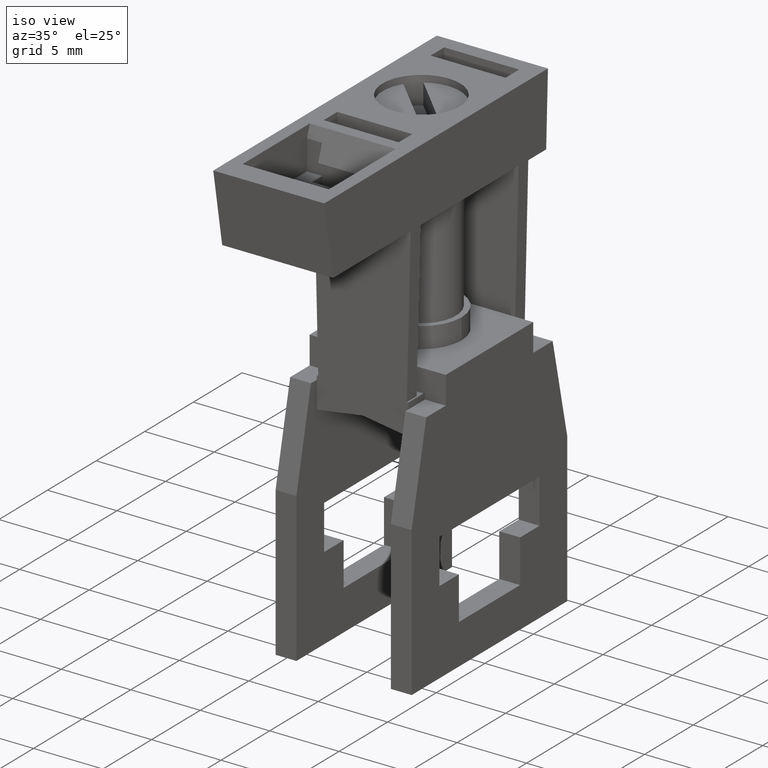
[diagram: clean part render]
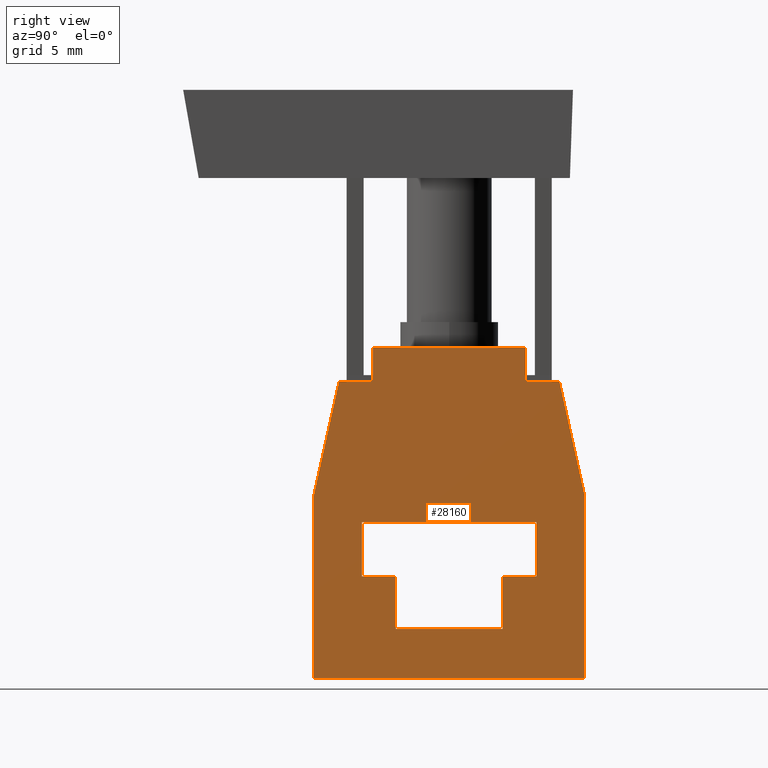
[diagram: tour spotlight — one face highlighted and labeled with its STEP entity id]
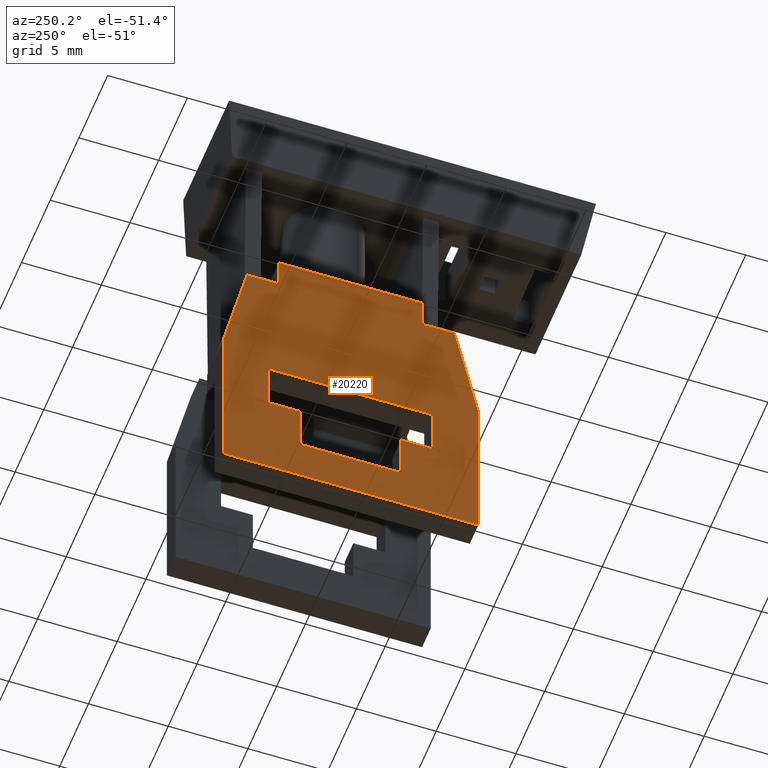
[diagram: tour spotlight — one face highlighted and labeled with its STEP entity id]
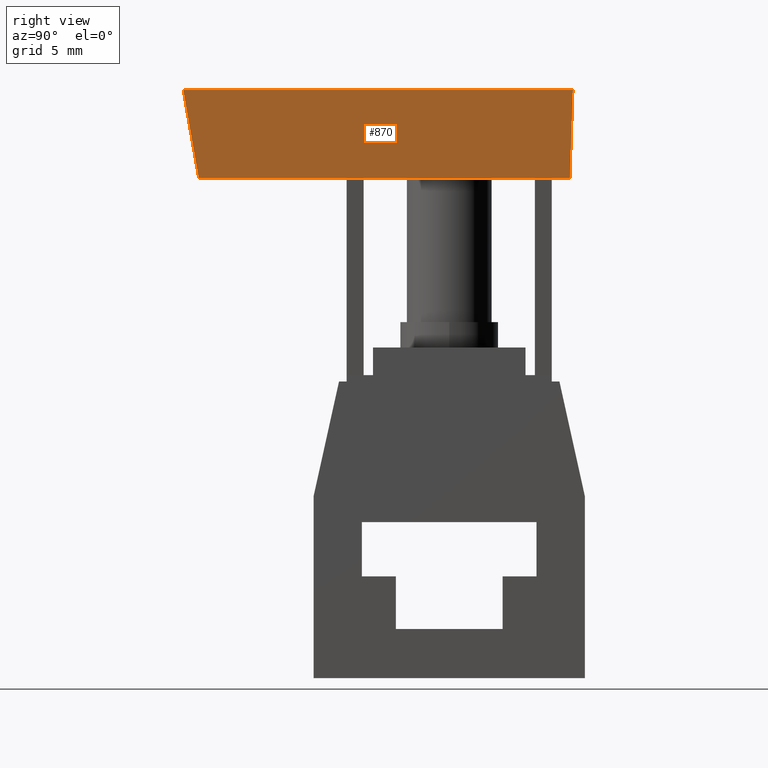
[diagram: tour spotlight — one face highlighted and labeled with its STEP entity id]
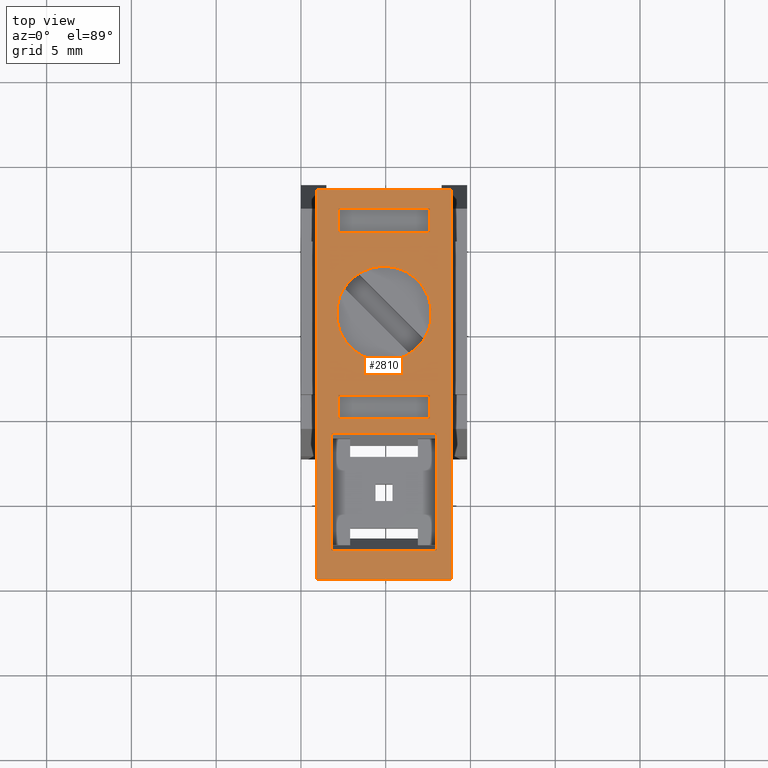
[diagram: tour spotlight — one face highlighted and labeled with its STEP entity id]
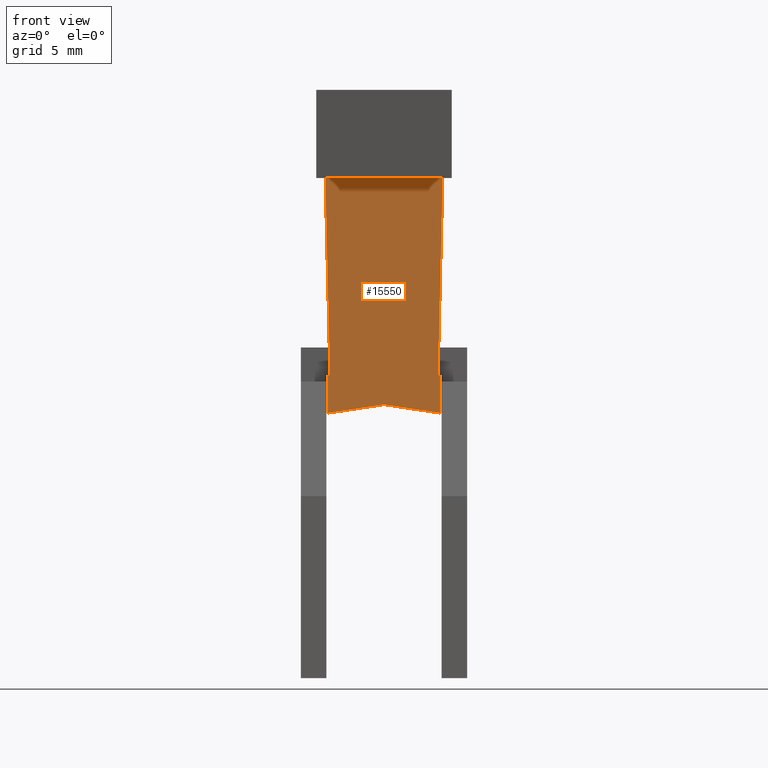
[diagram: tour spotlight — one face highlighted and labeled with its STEP entity id]
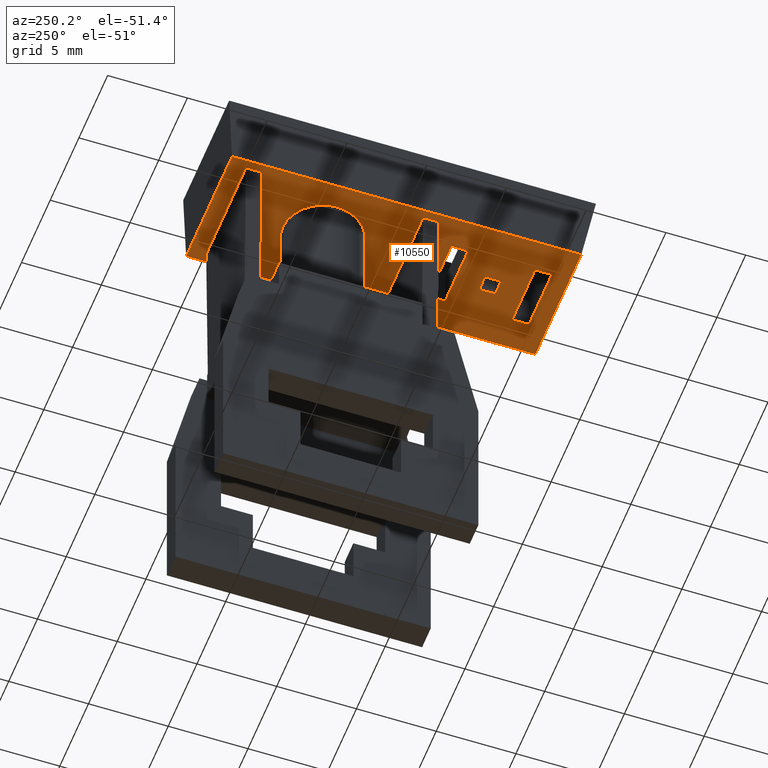
[diagram: tour spotlight — one face highlighted and labeled with its STEP entity id]
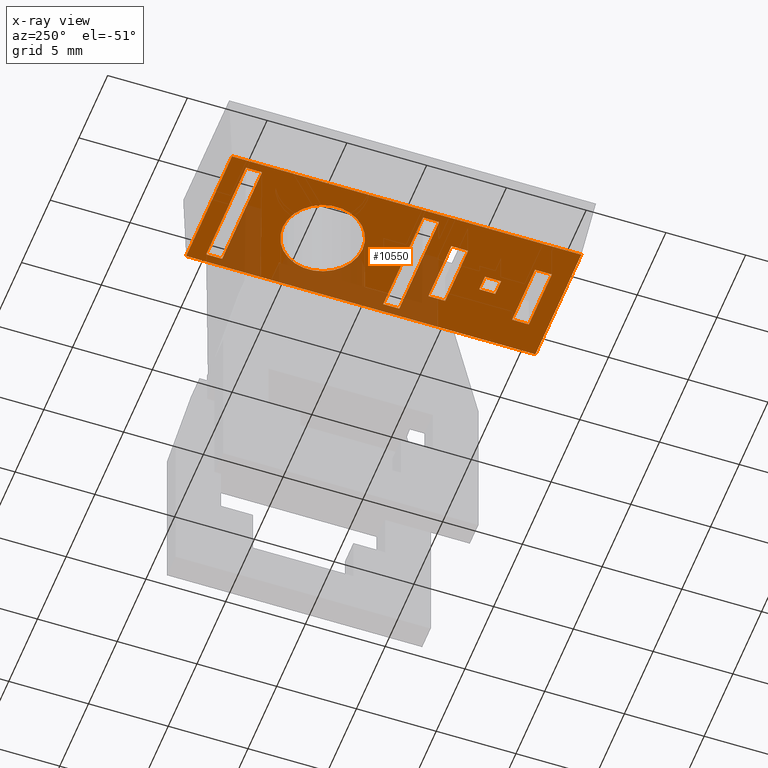
[diagram: x-ray of the same camera — body ghosted, this tour face saturated]
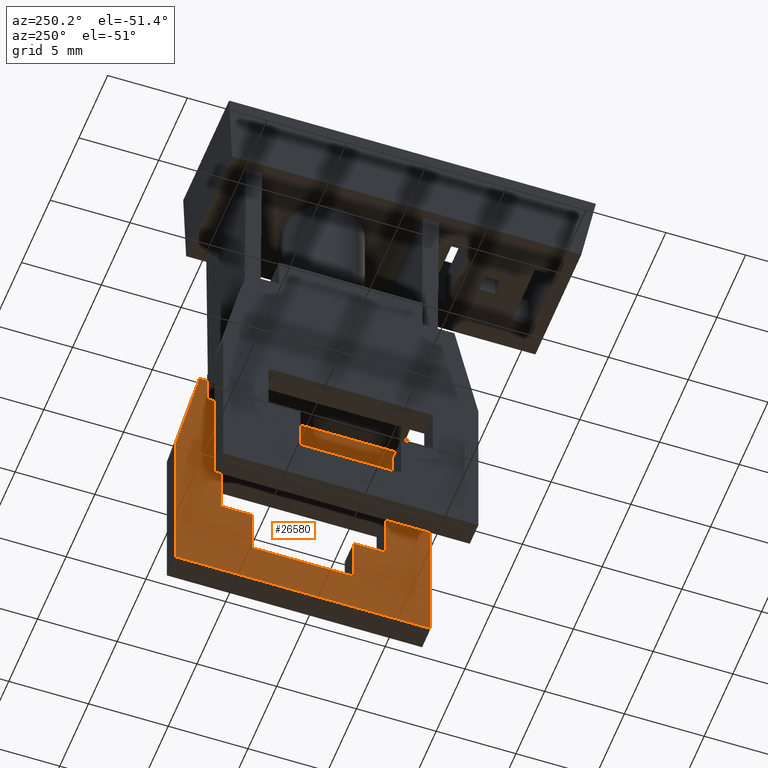
[diagram: tour spotlight — one face highlighted and labeled with its STEP entity id]
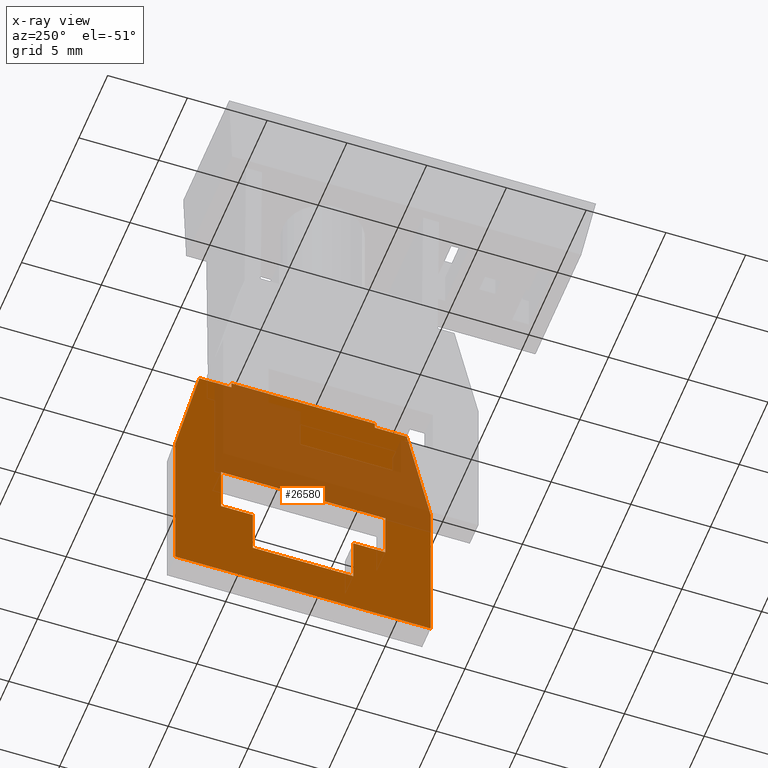
[diagram: x-ray of the same camera — body ghosted, this tour face saturated]
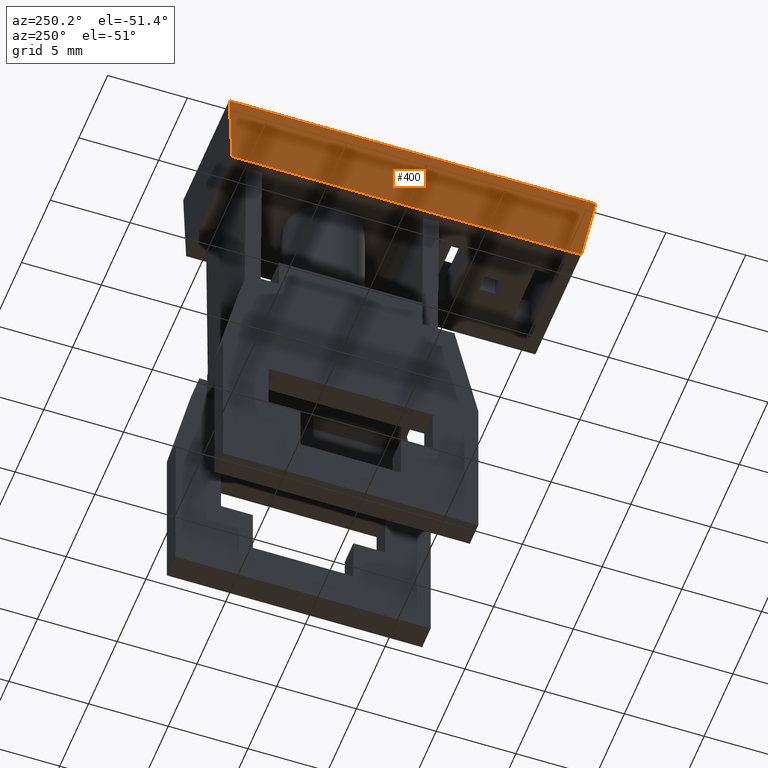
[diagram: tour spotlight — one face highlighted and labeled with its STEP entity id]
A machine part: a face-by-face anatomy tour. The part has 104 B-rep faces; the first image is the clean iso view, then the 8 largest visible faces are spotlighted one at a time (largest first), each with its STEP entity span.

Face 1 — right view, entity #28160. In plain terms, the highlighted planar face has unit normal (1, 0, -0).
Definition (entity closure, byte-faithful):
#11840=CARTESIAN_POINT('',(0.,19.5,0.));
#11850=DIRECTION('',(0.,0.,-1.));
#11860=VECTOR('',#11850,1.);
#11870=LINE('',#11840,#11860);
#11880=CARTESIAN_POINT('',(0.,19.5,12.5));
#11890=VERTEX_POINT('',#11880);
#11900=CARTESIAN_POINT('',(0.,19.5,3.5));
#11910=VERTEX_POINT('',#11900);
#11920=EDGE_CURVE('',#11890,#11910,#11870,.T.);
#12730=CARTESIAN_POINT('',(0.,17.5,3.5));
#12740=VERTEX_POINT('',#12730);
#12770=CARTESIAN_POINT('',(0.,0.,3.5));
#12780=DIRECTION('',(0.,-1.,-6.12323399573677E-17));
#12790=VECTOR('',#12780,1.);
#12800=LINE('',#12770,#12790);
#12810=EDGE_CURVE('',#11910,#12740,#12800,.T.);
#24620=CARTESIAN_POINT('',(0.,0.,12.5));
#24630=DIRECTION('',(0.,1.,6.12323399573677E-17));
#24640=VECTOR('',#24630,1.);
#24650=LINE('',#24620,#24640);
#24660=CARTESIAN_POINT('',(0.,17.5,12.5));
#24670=VERTEX_POINT('',#24660);
#24680=EDGE_CURVE('',#24670,#11890,#24650,.T.);
#25000=CARTESIAN_POINT('',(0.,17.5,14.5));
#25010=VERTEX_POINT('',#25000);
#25040=CARTESIAN_POINT('',(0.,0.,18.3796565962514));
#25050=DIRECTION('',(0.,0.976296007119933,-0.216439613938103));
#25060=VECTOR('',#25050,1.);
#25070=LINE('',#25040,#25060);
#25080=CARTESIAN_POINT('',(0.,10.7339372445069,16.));
#25090=VERTEX_POINT('',#25080);
#25100=EDGE_CURVE('',#25090,#25010,#25070,.T.);
#26750=CARTESIAN_POINT('',(0.,6.,4.85000000000001));
#26760=VERTEX_POINT('',#26750);
#26840=CARTESIAN_POINT('',(0.,6.,2.85000000000001));
#26850=VERTEX_POINT('',#26840);
#26880=CARTESIAN_POINT('',(0.,6.,0.));
#26890=DIRECTION('',(0.,6.12323399573677E-17,-1.));
#26900=VECTOR('',#26890,1.);
#26910=LINE('',#26880,#26900);
#26920=EDGE_CURVE('',#26760,#26850,#26910,.T.);
#27040=CARTESIAN_POINT('',(0.,2.89999999999998,0.));
#27050=DIRECTION('',(1.,0.,0.));
#27060=DIRECTION('',(0.,-1.,0.));
#27070=AXIS2_PLACEMENT_3D('',#27040,#27050,#27060);
#27080=PLANE('',#27070);
#27090=CARTESIAN_POINT('',(0.,0.,11.15));
#27100=DIRECTION('',(0.,-1.,-6.12323399573677E-17));
#27110=VECTOR('',#27100,1.);
#27120=LINE('',#27090,#27110);
#27130=CARTESIAN_POINT('',(0.,6.,11.15));
#27140=VERTEX_POINT('',#27130);
#27150=CARTESIAN_POINT('',(0.,2.89999999999998,11.15));
#27160=VERTEX_POINT('',#27150);
#27170=EDGE_CURVE('',#27140,#27160,#27120,.T.);
#27180=ORIENTED_EDGE('',*,*,#27170,.F.);
#27190=CARTESIAN_POINT('',(0.,2.89999999999998,0.));
#27200=DIRECTION('',(0.,6.12323399573677E-17,-1.));
#27210=VECTOR('',#27200,1.);
#27220=LINE('',#27190,#27210);
#27230=CARTESIAN_POINT('',(0.,2.89999999999998,4.85000000000001));
#27240=VERTEX_POINT('',#27230);
#27250=EDGE_CURVE('',#27160,#27240,#27220,.T.);
#27260=ORIENTED_EDGE('',*,*,#27250,.F.);
#27270=CARTESIAN_POINT('',(0.,0.,4.85000000000001));
#27280=DIRECTION('',(0.,1.,6.12323399573677E-17));
#27290=VECTOR('',#27280,1.);
#27300=LINE('',#27270,#27290);
#27310=EDGE_CURVE('',#27240,#26760,#27300,.T.);
#27320=ORIENTED_EDGE('',*,*,#27310,.F.);
#27330=ORIENTED_EDGE('',*,*,#26920,.F.);
#27340=CARTESIAN_POINT('',(0.,0.,2.85000000000001));
#27350=DIRECTION('',(0.,1.,6.12323399573677E-17));
#27360=VECTOR('',#27350,1.);
#27370=LINE('',#27340,#27360);
#27380=CARTESIAN_POINT('',(0.,9.2,2.85000000000001));
#27390=VERTEX_POINT('',#27380);
#27400=EDGE_CURVE('',#26850,#27390,#27370,.T.);
#27410=ORIENTED_EDGE('',*,*,#27400,.F.);
#27420=CARTESIAN_POINT('',(0.,9.2,0.));
#27430=DIRECTION('',(0.,0.,1.));
#27440=VECTOR('',#27430,1.);
#27450=LINE('',#27420,#27440);
#27460=CARTESIAN_POINT('',(0.,9.2,13.15));
#27470=VERTEX_POINT('',#27460);
#27480=EDGE_CURVE('',#27390,#27470,#27450,.T.);
#27490=ORIENTED_EDGE('',*,*,#27480,.F.);
#27500=CARTESIAN_POINT('',(0.,0.,13.15));
#27510=DIRECTION('',(0.,-1.,-6.12323399573677E-17));
#27520=VECTOR('',#27510,1.);
#27530=LINE('',#27500,#27520);
#27540=CARTESIAN_POINT('',(0.,6.,13.15));
#27550=VERTEX_POINT('',#27540);
#27560=EDGE_CURVE('',#27470,#27550,#27530,.T.);
#27570=ORIENTED_EDGE('',*,*,#27560,.F.);
#27580=CARTESIAN_POINT('',(0.,6.,0.));
#27590=DIRECTION('',(0.,6.12323399573677E-17,-1.));
#27600=VECTOR('',#27590,1.);
#27610=LINE('',#27580,#27600);
#27620=EDGE_CURVE('',#27550,#27140,#27610,.T.);
#27630=ORIENTED_EDGE('',*,*,#27620,.F.);
#27640=EDGE_LOOP('',(#27630,#27570,#27490,#27410,#27330,#27320,#27260,
#27180));
#27650=FACE_BOUND('',#27640,.T.);
#27660=CARTESIAN_POINT('',(0.,0.,16.));
#27670=DIRECTION('',(0.,1.,6.12323399573677E-17));
#27680=VECTOR('',#27670,1.);
#27690=LINE('',#27660,#27680);
#27700=CARTESIAN_POINT('',(0.,0.,16.));
#27710=VERTEX_POINT('',#27700);
#27720=EDGE_CURVE('',#27710,#25090,#27690,.T.);
#27730=ORIENTED_EDGE('',*,*,#27720,.F.);
#27740=ORIENTED_EDGE('',*,*,#25100,.F.);
#27750=CARTESIAN_POINT('',(0.,17.5,0.));
#27760=DIRECTION('',(0.,6.12323399573677E-17,-1.));
#27770=VECTOR('',#27760,1.);
#27780=LINE('',#27750,#27770);
#27790=EDGE_CURVE('',#25010,#24670,#27780,.T.);
#27800=ORIENTED_EDGE('',*,*,#27790,.F.);
#27810=ORIENTED_EDGE('',*,*,#24680,.F.);
#27820=ORIENTED_EDGE('',*,*,#11920,.F.);
#27830=ORIENTED_EDGE('',*,*,#12810,.F.);
#27840=CARTESIAN_POINT('',(0.,17.5,0.));
#27850=DIRECTION('',(0.,6.12323399573677E-17,-1.));
#27860=VECTOR('',#27850,1.);
#27870=LINE('',#27840,#27860);
#27880=CARTESIAN_POINT('',(0.,17.5,1.5));
#27890=VERTEX_POINT('',#27880);
#27900=EDGE_CURVE('',#12740,#27890,#27870,.T.);
#27910=ORIENTED_EDGE('',*,*,#27900,.F.);
#27920=CARTESIAN_POINT('',(0.,0.,-2.37965659625144));
#27930=DIRECTION('',(0.,-0.976296007119933,-0.216439613938103));
#27940=VECTOR('',#27930,1.);
#27950=LINE('',#27920,#27940);
#27960=CARTESIAN_POINT('',(0.,10.7339372445069,4.0262807533651E-15));
#27970=VERTEX_POINT('',#27960);
#27980=EDGE_CURVE('',#27890,#27970,#27950,.T.);
#27990=ORIENTED_EDGE('',*,*,#27980,.F.);
#28000=CARTESIAN_POINT('',(0.,0.,3.3690166589284E-15));
#28010=DIRECTION('',(0.,-1.,-6.12323399573677E-17));
#28020=VECTOR('',#28010,1.);
#28030=LINE('',#28000,#28020);
#28040=CARTESIAN_POINT('',(0.,0.,3.3690166589284E-15));
#28050=VERTEX_POINT('',#28040);
#28060=EDGE_CURVE('',#27970,#28050,#28030,.T.);
#28070=ORIENTED_EDGE('',*,*,#28060,.F.);
#28080=CARTESIAN_POINT('',(0.,0.,0.));
#28090=DIRECTION('',(0.,0.,1.));
#28100=VECTOR('',#28090,1.);
#28110=LINE('',#28080,#28100);
#28120=EDGE_CURVE('',#28050,#27710,#28110,.T.);
#28130=ORIENTED_EDGE('',*,*,#28120,.F.);
#28140=EDGE_LOOP('',(#28130,#28070,#27990,#27910,#27830,#27820,#27810,
#27800,#27740,#27730));
#28150=FACE_OUTER_BOUND('',#28140,.T.);
#28160=ADVANCED_FACE('',(#27650,#28150),#27080,.T.);

Face 2 — auxiliary view, entity #20220. In plain terms, the highlighted planar face has unit normal (-1, -0, 0).
Definition (entity closure, byte-faithful):
#11980=CARTESIAN_POINT('',(-9.8,19.5,12.5));
#11990=VERTEX_POINT('',#11980);
#12020=CARTESIAN_POINT('',(-9.8,19.5,0.));
#12030=DIRECTION('',(0.,0.,-1.));
#12040=VECTOR('',#12030,1.);
#12050=LINE('',#12020,#12040);
#12060=CARTESIAN_POINT('',(-9.8,19.5,3.5));
#12070=VERTEX_POINT('',#12060);
#12080=EDGE_CURVE('',#11990,#12070,#12050,.T.);
#12840=CARTESIAN_POINT('',(-9.8,0.,3.5));
#12850=DIRECTION('',(0.,1.,6.12323399573677E-17));
#12860=VECTOR('',#12850,1.);
#12870=LINE('',#12840,#12860);
#12880=CARTESIAN_POINT('',(-9.8,17.5,3.5));
#12890=VERTEX_POINT('',#12880);
#12900=EDGE_CURVE('',#12890,#12070,#12870,.T.);
#13140=CARTESIAN_POINT('',(-9.8,17.5,0.));
#13150=DIRECTION('',(0.,-6.12323399573677E-17,1.));
#13160=VECTOR('',#13150,1.);
#13170=LINE('',#13140,#13160);
#13180=CARTESIAN_POINT('',(-9.8,17.5,1.5));
#13190=VERTEX_POINT('',#13180);
#13200=EDGE_CURVE('',#13190,#12890,#13170,.T.);
#18590=CARTESIAN_POINT('',(-9.8,0.,16.));
#18600=DIRECTION('',(0.,-1.,-6.12323399573677E-17));
#18610=VECTOR('',#18600,1.);
#18620=LINE('',#18590,#18610);
#18630=CARTESIAN_POINT('',(-9.8,10.7339372445069,16.));
#18640=VERTEX_POINT('',#18630);
#18650=CARTESIAN_POINT('',(-9.8,0.,16.));
#18660=VERTEX_POINT('',#18650);
#18670=EDGE_CURVE('',#18640,#18660,#18620,.T.);
#19010=CARTESIAN_POINT('',(-9.8,9.2,0.));
#19020=DIRECTION('',(-1.,0.,0.));
#19030=DIRECTION('',(0.,1.,0.));
#19040=AXIS2_PLACEMENT_3D('',#19010,#19020,#19030);
#19050=PLANE('',#19040);
#19060=CARTESIAN_POINT('',(-9.8,6.,0.));
#19070=DIRECTION('',(0.,-6.12323399573677E-17,1.));
#19080=VECTOR('',#19070,1.);
#19090=LINE('',#19060,#19080);
#19100=CARTESIAN_POINT('',(-9.8,6.,11.15));
#19110=VERTEX_POINT('',#19100);
#19120=CARTESIAN_POINT('',(-9.8,6.,13.15));
#19130=VERTEX_POINT('',#19120);
#19140=EDGE_CURVE('',#19110,#19130,#19090,.T.);
#19150=ORIENTED_EDGE('',*,*,#19140,.F.);
#19160=CARTESIAN_POINT('',(-9.8,0.,13.15));
#19170=DIRECTION('',(0.,1.,6.12323399573677E-17));
#19180=VECTOR('',#19170,1.);
#19190=LINE('',#19160,#19180);
#19200=CARTESIAN_POINT('',(-9.8,9.2,13.15));
#19210=VERTEX_POINT('',#19200);
#19220=EDGE_CURVE('',#19130,#19210,#19190,.T.);
#19230=ORIENTED_EDGE('',*,*,#19220,.F.);
#19240=CARTESIAN_POINT('',(-9.8,9.2,0.));
#19250=DIRECTION('',(0.,0.,-1.));
#19260=VECTOR('',#19250,1.);
#19270=LINE('',#19240,#19260);
#19280=CARTESIAN_POINT('',(-9.8,9.2,2.85000000000001));
#19290=VERTEX_POINT('',#19280);
#19300=EDGE_CURVE('',#19210,#19290,#19270,.T.);
#19310=ORIENTED_EDGE('',*,*,#19300,.F.);
#19320=CARTESIAN_POINT('',(-9.8,0.,2.85000000000001));
#19330=DIRECTION('',(0.,-1.,-6.12323399573677E-17));
#19340=VECTOR('',#19330,1.);
#19350=LINE('',#19320,#19340);
#19360=CARTESIAN_POINT('',(-9.8,6.,2.85000000000001));
#19370=VERTEX_POINT('',#19360);
#19380=EDGE_CURVE('',#19290,#19370,#19350,.T.);
#19390=ORIENTED_EDGE('',*,*,#19380,.F.);
#19400=CARTESIAN_POINT('',(-9.8,6.,0.));
#19410=DIRECTION('',(0.,-6.12323399573677E-17,1.));
#19420=VECTOR('',#19410,1.);
#19430=LINE('',#19400,#19420);
#19440=CARTESIAN_POINT('',(-9.8,6.,4.85000000000001));
#19450=VERTEX_POINT('',#19440);
#19460=EDGE_CURVE('',#19370,#19450,#19430,.T.);
#19470=ORIENTED_EDGE('',*,*,#19460,.F.);
#19480=CARTESIAN_POINT('',(-9.8,0.,4.85000000000001));
#19490=DIRECTION('',(0.,-1.,-6.12323399573677E-17));
#19500=VECTOR('',#19490,1.);
#19510=LINE('',#19480,#19500);
#19520=CARTESIAN_POINT('',(-9.8,2.89999999999998,4.85000000000001));
#19530=VERTEX_POINT('',#19520);
#19540=EDGE_CURVE('',#19450,#19530,#19510,.T.);
#19550=ORIENTED_EDGE('',*,*,#19540,.F.);
#19560=CARTESIAN_POINT('',(-9.8,2.89999999999998,0.));
#19570=DIRECTION('',(0.,-6.12323399573677E-17,1.));
#19580=VECTOR('',#19570,1.);
#19590=LINE('',#19560,#19580);
#19600=CARTESIAN_POINT('',(-9.8,2.89999999999998,11.15));
#19610=VERTEX_POINT('',#19600);
#19620=EDGE_CURVE('',#19530,#19610,#19590,.T.);
#19630=ORIENTED_EDGE('',*,*,#19620,.F.);
#19640=CARTESIAN_POINT('',(-9.8,0.,11.15));
#19650=DIRECTION('',(0.,1.,6.12323399573677E-17));
#19660=VECTOR('',#19650,1.);
#19670=LINE('',#19640,#19660);
#19680=EDGE_CURVE('',#19610,#19110,#19670,.T.);
#19690=ORIENTED_EDGE('',*,*,#19680,.F.);
#19700=EDGE_LOOP('',(#19690,#19630,#19550,#19470,#19390,#19310,#19230,
#19150));
#19710=FACE_BOUND('',#19700,.T.);
#19720=CARTESIAN_POINT('',(-9.8,0.,0.));
#19730=DIRECTION('',(0.,0.,1.));
#19740=VECTOR('',#19730,1.);
#19750=LINE('',#19720,#19740);
#19760=CARTESIAN_POINT('',(-9.8,0.,3.3690166589284E-15));
#19770=VERTEX_POINT('',#19760);
#19780=EDGE_CURVE('',#19770,#18660,#19750,.T.);
#19790=ORIENTED_EDGE('',*,*,#19780,.T.);
#19800=CARTESIAN_POINT('',(-9.8,0.,3.3690166589284E-15));
#19810=DIRECTION('',(0.,1.,6.12323399573677E-17));
#19820=VECTOR('',#19810,1.);
#19830=LINE('',#19800,#19820);
#19840=CARTESIAN_POINT('',(-9.8,10.7339372445069,4.0262807533651E-15));
#19850=VERTEX_POINT('',#19840);
#19860=EDGE_CURVE('',#19770,#19850,#19830,.T.);
#19870=ORIENTED_EDGE('',*,*,#19860,.F.);
#19880=CARTESIAN_POINT('',(-9.8,0.,-2.37965659625144));
#19890=DIRECTION('',(0.,0.976296007119933,0.216439613938103));
#19900=VECTOR('',#19890,1.);
#19910=LINE('',#19880,#19900);
#19920=EDGE_CURVE('',#19850,#13190,#19910,.T.);
#19930=ORIENTED_EDGE('',*,*,#19920,.F.);
#19940=ORIENTED_EDGE('',*,*,#13200,.F.);
#19950=ORIENTED_EDGE('',*,*,#12900,.F.);
#19960=ORIENTED_EDGE('',*,*,#12080,.T.);
#19970=CARTESIAN_POINT('',(-9.8,0.,12.5));
#19980=DIRECTION('',(0.,-1.,-6.12323399573677E-17));
#19990=VECTOR('',#19980,1.);
#20000=LINE('',#19970,#19990);
#20010=CARTESIAN_POINT('',(-9.8,17.5,12.5));
#20020=VERTEX_POINT('',#20010);
#20030=EDGE_CURVE('',#11990,#20020,#20000,.T.);
#20040=ORIENTED_EDGE('',*,*,#20030,.F.);
#20050=CARTESIAN_POINT('',(-9.8,17.5,0.));
#20060=DIRECTION('',(0.,-6.12323399573677E-17,1.));
#20070=VECTOR('',#20060,1.);
#20080=LINE('',#20050,#20070);
#20090=CARTESIAN_POINT('',(-9.8,17.5,14.5));
#20100=VERTEX_POINT('',#20090);
#20110=EDGE_CURVE('',#20020,#20100,#20080,.T.);
#20120=ORIENTED_EDGE('',*,*,#20110,.F.);
#20130=CARTESIAN_POINT('',(-9.8,0.,18.3796565962514));
#20140=DIRECTION('',(0.,-0.976296007119933,0.216439613938103));
#20150=VECTOR('',#20140,1.);
#20160=LINE('',#20130,#20150);
#20170=EDGE_CURVE('',#20100,#18640,#20160,.T.);
#20180=ORIENTED_EDGE('',*,*,#20170,.F.);
#20190=ORIENTED_EDGE('',*,*,#18670,.F.);
#20200=EDGE_LOOP('',(#20190,#20180,#20120,#20040,#19960,#19950,#19940,
#19930,#19870,#19790));
#20210=FACE_OUTER_BOUND('',#20200,.T.);
#20220=ADVANCED_FACE('',(#19710,#20210),#19050,.T.);

Face 3 — right view, entity #870. In plain terms, the highlighted planar face has unit normal (-1, -0, 0).
Definition (entity closure, byte-faithful):
#480=CARTESIAN_POINT('',(-0.900000000000007,-37.6157639988893,
-5.41459899554903));
#490=DIRECTION('',(-1.,0.,6.12323399573677E-17));
#500=DIRECTION('',(6.12323399573677E-17,0.,1.));
#510=AXIS2_PLACEMENT_3D('',#480,#490,#500);
#520=PLANE('',#510);
#530=CARTESIAN_POINT('',(-0.900000000000006,29.5,0.));
#540=DIRECTION('',(6.12323399573677E-17,0.,1.));
#550=VECTOR('',#540,1.);
#560=LINE('',#530,#550);
#570=CARTESIAN_POINT('',(-0.900000000000006,29.5,0.881588001357093));
#580=VERTEX_POINT('',#570);
#590=CARTESIAN_POINT('',(-0.900000000000005,29.5,22.7783068782052));
#600=VERTEX_POINT('',#590);
#610=EDGE_CURVE('',#580,#600,#560,.T.);
#620=ORIENTED_EDGE('',*,*,#610,.F.);
#630=CARTESIAN_POINT('',(-0.900000000000005,5.7,18.5817247373437));
#640=DIRECTION('',(2.77555756156289E-17,0.984807753012208,
0.173648177666932));
#650=VECTOR('',#640,1.);
#660=LINE('',#630,#650);
#670=CARTESIAN_POINT('',(-0.900000000000004,34.7,23.6952071778893));
#680=VERTEX_POINT('',#670);
#690=EDGE_CURVE('',#600,#680,#660,.T.);
#700=ORIENTED_EDGE('',*,*,#690,.F.);
#710=CARTESIAN_POINT('',(-0.900000000000006,34.7,0.));
#720=DIRECTION('',(6.12323399573676E-17,-1.04692687324466E-15,1.));
#730=VECTOR('',#720,1.);
#740=LINE('',#710,#730);
#750=CARTESIAN_POINT('',(-0.900000000000006,34.7,0.700000000000012));
#760=VERTEX_POINT('',#750);
#770=EDGE_CURVE('',#760,#680,#740,.T.);
#780=ORIENTED_EDGE('',*,*,#770,.T.);
#790=CARTESIAN_POINT('',(-0.900000000000006,5.7,1.71270231526066));
#800=DIRECTION('',(3.46944695195362E-18,-0.999390827019096,
0.0348994967024996));
#810=VECTOR('',#800,1.);
#820=LINE('',#790,#810);
#830=EDGE_CURVE('',#760,#580,#820,.T.);
#840=ORIENTED_EDGE('',*,*,#830,.F.);
#850=EDGE_LOOP('',(#840,#780,#700,#620));
#860=FACE_OUTER_BOUND('',#850,.T.);
#870=ADVANCED_FACE('',(#860),#520,.F.);

Face 4 — top view, entity #2810. In plain terms, the highlighted planar face has unit normal (0, -0, 1).
Definition (entity closure, byte-faithful):
#100=CARTESIAN_POINT('',(-8.90000000000001,34.7,0.700000000000013));
#110=VERTEX_POINT('',#100);
#160=CARTESIAN_POINT('',(-8.90000000000001,34.7,0.));
#170=DIRECTION('',(6.12323399573676E-17,-1.04692687324466E-15,1.));
#180=VECTOR('',#170,1.);
#190=LINE('',#160,#180);
#200=CARTESIAN_POINT('',(-8.9,34.7,23.6952071778893));
#210=VERTEX_POINT('',#200);
#220=EDGE_CURVE('',#110,#210,#190,.T.);
#670=CARTESIAN_POINT('',(-0.900000000000004,34.7,23.6952071778893));
#680=VERTEX_POINT('',#670);
#710=CARTESIAN_POINT('',(-0.900000000000006,34.7,0.));
#720=DIRECTION('',(6.12323399573676E-17,-1.04692687324466E-15,1.));
#730=VECTOR('',#720,1.);
#740=LINE('',#710,#730);
#750=CARTESIAN_POINT('',(-0.900000000000006,34.7,0.700000000000012));
#760=VERTEX_POINT('',#750);
#770=EDGE_CURVE('',#760,#680,#740,.T.);
#1010=CARTESIAN_POINT('',(-0.900000000000006,34.7,0.700000000000012));
#1020=DIRECTION('',(-1.,0.,6.12323399573677E-17));
#1030=VECTOR('',#1020,1.);
#1040=LINE('',#1010,#1030);
#1050=EDGE_CURVE('',#760,#110,#1040,.T.);
#1360=CARTESIAN_POINT('',(-0.900000000000005,34.7,23.6952071778893));
#1370=DIRECTION('',(-1.,0.,6.12323399573677E-17));
#1380=VECTOR('',#1370,1.);
#1390=LINE('',#1360,#1380);
#1400=EDGE_CURVE('',#680,#210,#1390,.T.);
#1530=CARTESIAN_POINT('',(-0.900000000000006,34.7,0.700000000000012));
#1540=DIRECTION('',(6.41057822130211E-32,1.,1.04692687324466E-15));
#1550=DIRECTION('',(6.12323399573677E-17,-1.04692687324466E-15,1.));
#1560=AXIS2_PLACEMENT_3D('',#1530,#1540,#1550);
#1570=PLANE('',#1560);
#1580=CARTESIAN_POINT('',(0.,34.7,15.0422422833619));
#1590=DIRECTION('',(-1.,0.,6.12323399573681E-17));
#1600=VECTOR('',#1590,1.);
#1610=LINE('',#1580,#1600);
#1620=CARTESIAN_POINT('',(-1.8,34.7,15.0422422833619));
#1630=VERTEX_POINT('',#1620);
#1640=CARTESIAN_POINT('',(-8.00000000000001,34.7,15.0422422833619));
#1650=VERTEX_POINT('',#1640);
#1660=EDGE_CURVE('',#1630,#1650,#1610,.T.);
#1670=ORIENTED_EDGE('',*,*,#1660,.F.);
#1680=CARTESIAN_POINT('',(-8.00000000000001,34.7,0.));
#1690=DIRECTION('',(-6.12323399573676E-17,1.04692687324466E-15,-1.));
#1700=VECTOR('',#1690,1.);
#1710=LINE('',#1680,#1700);
#1720=CARTESIAN_POINT('',(-8.,34.7,21.9579404685324));
#1730=VERTEX_POINT('',#1720);
#1740=EDGE_CURVE('',#1730,#1650,#1710,.T.);
#1750=ORIENTED_EDGE('',*,*,#1740,.T.);
#1760=CARTESIAN_POINT('',(0.,34.7,21.9579404685324));
#1770=DIRECTION('',(-1.,0.,6.12323399573681E-17));
#1780=VECTOR('',#1770,1.);
#1790=LINE('',#1760,#1780);
#1800=CARTESIAN_POINT('',(-1.8,34.7,21.9579404685324));
#1810=VERTEX_POINT('',#1800);
#1820=EDGE_CURVE('',#1810,#1730,#1790,.T.);
#1830=ORIENTED_EDGE('',*,*,#1820,.T.);
#1840=CARTESIAN_POINT('',(-1.80000000000001,34.7,0.));
#1850=DIRECTION('',(6.12323399573676E-17,-1.04692687324466E-15,1.));
#1860=VECTOR('',#1850,1.);
#1870=LINE('',#1840,#1860);
#1880=EDGE_CURVE('',#1630,#1810,#1870,.T.);
#1890=ORIENTED_EDGE('',*,*,#1880,.T.);
#1900=EDGE_LOOP('',(#1890,#1830,#1750,#1670));
#1910=FACE_BOUND('',#1900,.T.);
#1920=CARTESIAN_POINT('',(-4.90000000000001,34.7,8.00000000000001));
#1930=DIRECTION('',(-6.41057822130211E-32,-1.,-1.04692687324466E-15));
#1940=DIRECTION('',(6.12323399573677E-17,-1.04692687324466E-15,1.));
#1950=AXIS2_PLACEMENT_3D('',#1920,#1930,#1940);
#1960=CIRCLE('',#1950,2.8);
#1970=CARTESIAN_POINT('',(-4.90000000000001,34.7,10.8));
#1980=VERTEX_POINT('',#1970);
#1990=CARTESIAN_POINT('',(-4.90000000000001,34.7,5.20000000000001));
#2000=VERTEX_POINT('',#1990);
#2010=EDGE_CURVE('',#1980,#2000,#1960,.T.);
#2020=ORIENTED_EDGE('',*,*,#2010,.T.);
#2030=EDGE_CURVE('',#2000,#1980,#1960,.T.);
#2040=ORIENTED_EDGE('',*,*,#2030,.T.);
#2050=EDGE_LOOP('',(#2040,#2020));
#2060=FACE_BOUND('',#2050,.T.);
#2070=CARTESIAN_POINT('',(-2.20000000000001,34.7,0.));
#2080=DIRECTION('',(6.12323399573676E-17,-1.04692687324466E-15,1.));
#2090=VECTOR('',#2080,1.);
#2100=LINE('',#2070,#2090);
#2110=CARTESIAN_POINT('',(-2.20000000000001,34.7,12.8));
#2120=VERTEX_POINT('',#2110);
#2130=CARTESIAN_POINT('',(-2.20000000000001,34.7,14.2));
#2140=VERTEX_POINT('',#2130);
#2150=EDGE_CURVE('',#2120,#2140,#2100,.T.);
#2160=ORIENTED_EDGE('',*,*,#2150,.T.);
#2170=CARTESIAN_POINT('',(0.,34.7,12.8));
#2180=DIRECTION('',(1.,6.16297582203915E-33,-6.12323399573677E-17));
#2190=VECTOR('',#2180,1.);
#2200=LINE('',#2170,#2190);
#2210=CARTESIAN_POINT('',(-7.6,34.7,12.8));
#2220=VERTEX_POINT('',#2210);
#2230=EDGE_CURVE('',#2220,#2120,#2200,.T.);
#2240=ORIENTED_EDGE('',*,*,#2230,.T.);
#2250=CARTESIAN_POINT('',(-7.6,34.7,0.));
#2260=DIRECTION('',(-6.12323399573676E-17,1.04692687324466E-15,-1.));
#2270=VECTOR('',#2260,1.);
#2280=LINE('',#2250,#2270);
#2290=CARTESIAN_POINT('',(-7.6,34.7,14.2));
#2300=VERTEX_POINT('',#2290);
#2310=EDGE_CURVE('',#2300,#2220,#2280,.T.);
#2320=ORIENTED_EDGE('',*,*,#2310,.T.);
#2330=CARTESIAN_POINT('',(0.,34.7,14.2));
#2340=DIRECTION('',(-1.,-6.16297582203915E-33,6.12323399573677E-17));
#2350=VECTOR('',#2340,1.);
#2360=LINE('',#2330,#2350);
#2370=EDGE_CURVE('',#2140,#2300,#2360,.T.);
#2380=ORIENTED_EDGE('',*,*,#2370,.T.);
#2390=EDGE_LOOP('',(#2380,#2320,#2240,#2160));
#2400=FACE_BOUND('',#2390,.T.);
#2410=CARTESIAN_POINT('',(-2.20000000000001,34.7,0.));
#2420=DIRECTION('',(6.12323399573676E-17,-1.04692687324466E-15,1.));
#2430=VECTOR('',#2420,1.);
#2440=LINE('',#2410,#2430);
#2450=CARTESIAN_POINT('',(-2.20000000000001,34.7,1.80000000000002));
#2460=VERTEX_POINT('',#2450);
#2470=CARTESIAN_POINT('',(-2.20000000000001,34.7,3.20000000000001));
#2480=VERTEX_POINT('',#2470);
#2490=EDGE_CURVE('',#2460,#2480,#2440,.T.);
#2500=ORIENTED_EDGE('',*,*,#2490,.T.);
#2510=CARTESIAN_POINT('',(0.,34.7,1.80000000000002));
#2520=DIRECTION('',(1.,6.16297582203915E-33,-6.12323399573677E-17));
#2530=VECTOR('',#2520,1.);
#2540=LINE('',#2510,#2530);
#2550=CARTESIAN_POINT('',(-7.6,34.7,1.80000000000002));
#2560=VERTEX_POINT('',#2550);
#2570=EDGE_CURVE('',#2560,#2460,#2540,.T.);
#2580=ORIENTED_EDGE('',*,*,#2570,.T.);
#2590=CARTESIAN_POINT('',(-7.6,34.7,0.));
#2600=DIRECTION('',(-6.12323399573676E-17,1.04692687324466E-15,-1.));
#2610=VECTOR('',#2600,1.);
#2620=LINE('',#2590,#2610);
#2630=CARTESIAN_POINT('',(-7.6,34.7,3.20000000000001));
#2640=VERTEX_POINT('',#2630);
#2650=EDGE_CURVE('',#2640,#2560,#2620,.T.);
#2660=ORIENTED_EDGE('',*,*,#2650,.T.);
#2670=CARTESIAN_POINT('',(0.,34.7,3.20000000000001));
#2680=DIRECTION('',(-1.,-6.16297582203915E-33,6.12323399573677E-17));
#2690=VECTOR('',#2680,1.);
#2700=LINE('',#2670,#2690);
#2710=EDGE_CURVE('',#2480,#2640,#2700,.T.);
#2720=ORIENTED_EDGE('',*,*,#2710,.T.);
#2730=EDGE_LOOP('',(#2720,#2660,#2580,#2500));
#2740=FACE_BOUND('',#2730,.T.);
#2750=ORIENTED_EDGE('',*,*,#1400,.F.);
#2760=ORIENTED_EDGE('',*,*,#220,.T.);
#2770=ORIENTED_EDGE('',*,*,#1050,.T.);
#2780=ORIENTED_EDGE('',*,*,#770,.F.);
#2790=EDGE_LOOP('',(#2780,#2770,#2760,#2750));
#2800=FACE_OUTER_BOUND('',#2790,.T.);
#2810=ADVANCED_FACE('',(#1910,#2060,#2400,#2740,#2800),#1570,.T.);

Face 5 — front view, entity #15550. In plain terms, the highlighted planar face has unit normal (0, -1, 0).
Definition (entity closure, byte-faithful):
#9740=CARTESIAN_POINT('',(-8.37057533534784,29.5,14.05));
#9750=VERTEX_POINT('',#9740);
#9920=CARTESIAN_POINT('',(-1.42942466465218,29.5,14.05));
#9930=VERTEX_POINT('',#9920);
#9960=CARTESIAN_POINT('',(0.,29.5,14.05));
#9970=DIRECTION('',(1.,0.,0.));
#9980=VECTOR('',#9970,1.);
#9990=LINE('',#9960,#9980);
#10000=EDGE_CURVE('',#9750,#9930,#9990,.T.);
#13750=CARTESIAN_POINT('',(-8.2,17.8718018669666,14.05));
#13760=VERTEX_POINT('',#13750);
#13790=CARTESIAN_POINT('',(-8.2,9.93606699851119,14.05));
#13800=DIRECTION('',(0.,1.,-3.67394039744206E-16));
#13810=VECTOR('',#13800,1.);
#13820=LINE('',#13790,#13810);
#13830=CARTESIAN_POINT('',(-8.20000000000001,15.6360669985112,14.05));
#13840=VERTEX_POINT('',#13830);
#13850=EDGE_CURVE('',#13840,#13760,#13820,.T.);
#14080=CARTESIAN_POINT('',(-1.60000000000002,9.9360669985112,14.05));
#14090=DIRECTION('',(0.,1.,-3.67394039744206E-16));
#14100=VECTOR('',#14090,1.);
#14110=LINE('',#14080,#14100);
#14120=CARTESIAN_POINT('',(-1.60000000000002,15.6360669985112,14.05));
#14130=VERTEX_POINT('',#14120);
#14140=CARTESIAN_POINT('',(-1.60000000000002,17.8718018669666,14.05));
#14150=VERTEX_POINT('',#14140);
#14160=EDGE_CURVE('',#14130,#14150,#14110,.T.);
#14660=CARTESIAN_POINT('',(-35.9,17.8718018669666,14.05));
#14670=DIRECTION('',(-1.,1.3684555315672E-48,2.24963967399278E-32));
#14680=VECTOR('',#14670,1.);
#14690=LINE('',#14660,#14680);
#14700=CARTESIAN_POINT('',(-1.70955030898591,17.8718018669666,14.05));
#14710=VERTEX_POINT('',#14700);
#14720=EDGE_CURVE('',#14150,#14710,#14690,.T.);
#14940=CARTESIAN_POINT('',(-8.09044969101411,17.8718018669666,14.05));
#14950=VERTEX_POINT('',#14940);
#14980=EDGE_CURVE('',#14950,#13760,#14690,.T.);
#15170=CARTESIAN_POINT('',(-35.9,9.93606699851119,14.05));
#15180=DIRECTION('',(0.,0.,1.));
#15190=DIRECTION('',(1.,0.,0.));
#15200=AXIS2_PLACEMENT_3D('',#15170,#15180,#15190);
#15210=PLANE('',#15200);
#15220=CARTESIAN_POINT('',(-7.65991437022638,0.,14.05));
#15230=DIRECTION('',(0.0240832150205709,-0.999709957314757,0.));
#15240=VECTOR('',#15230,1.);
#15250=LINE('',#15220,#15240);
#15260=EDGE_CURVE('',#9750,#14950,#15250,.T.);
#15270=ORIENTED_EDGE('',*,*,#15260,.T.);
#15280=ORIENTED_EDGE('',*,*,#10000,.F.);
#15290=CARTESIAN_POINT('',(-2.14008562977365,0.,14.05));
#15300=DIRECTION('',(-0.0240832150205709,-0.999709957314757,0.));
#15310=VECTOR('',#15300,1.);
#15320=LINE('',#15290,#15310);
#15330=EDGE_CURVE('',#9930,#14710,#15320,.T.);
#15340=ORIENTED_EDGE('',*,*,#15330,.F.);
#15350=ORIENTED_EDGE('',*,*,#14720,.T.);
#15360=ORIENTED_EDGE('',*,*,#14160,.T.);
#15370=CARTESIAN_POINT('',(0.,15.3936427560869,14.05));
#15380=DIRECTION('',(-0.988715504224766,0.149805379427997,0.));
#15390=VECTOR('',#15380,1.);
#15400=LINE('',#15370,#15390);
#15410=CARTESIAN_POINT('',(-4.90000000000001,16.1360669985112,14.05));
#15420=VERTEX_POINT('',#15410);
#15430=EDGE_CURVE('',#14130,#15420,#15400,.T.);
#15440=ORIENTED_EDGE('',*,*,#15430,.F.);
#15450=CARTESIAN_POINT('',(0.,16.8784912409354,14.05));
#15460=DIRECTION('',(-0.988715504224767,-0.149805379427996,0.));
#15470=VECTOR('',#15460,1.);
#15480=LINE('',#15450,#15470);
#15490=EDGE_CURVE('',#15420,#13840,#15480,.T.);
#15500=ORIENTED_EDGE('',*,*,#15490,.F.);
#15510=ORIENTED_EDGE('',*,*,#13850,.F.);
#15520=ORIENTED_EDGE('',*,*,#14980,.T.);
#15530=EDGE_LOOP('',(#15520,#15510,#15500,#15440,#15360,#15350,#15340,
#15280,#15270));
#15540=FACE_OUTER_BOUND('',#15530,.T.);
#15550=ADVANCED_FACE('',(#15540),#15210,.T.);

Face 6 — auxiliary view, entity #10550. An x-ray twin of the same camera follows (body ghosted, this face saturated) — the face is partly hidden behind the body. In plain terms, the highlighted planar face has unit normal (0, 0, 1).
Definition (entity closure, byte-faithful):
#120=CARTESIAN_POINT('',(-8.90000000000001,29.5,0.881588001357093));
#130=VERTEX_POINT('',#120);
#280=CARTESIAN_POINT('',(-8.9,29.5,22.7783068782052));
#290=VERTEX_POINT('',#280);
#320=CARTESIAN_POINT('',(-8.90000000000001,29.5,0.));
#330=DIRECTION('',(6.12323399573677E-17,0.,1.));
#340=VECTOR('',#330,1.);
#350=LINE('',#320,#340);
#360=EDGE_CURVE('',#130,#290,#350,.T.);
#530=CARTESIAN_POINT('',(-0.900000000000006,29.5,0.));
#540=DIRECTION('',(6.12323399573677E-17,0.,1.));
#550=VECTOR('',#540,1.);
#560=LINE('',#530,#550);
#570=CARTESIAN_POINT('',(-0.900000000000006,29.5,0.881588001357093));
#580=VERTEX_POINT('',#570);
#590=CARTESIAN_POINT('',(-0.900000000000005,29.5,22.7783068782052));
#600=VERTEX_POINT('',#590);
#610=EDGE_CURVE('',#580,#600,#560,.T.);
#1080=CARTESIAN_POINT('',(0.,29.5,0.881588001357093));
#1090=DIRECTION('',(1.,0.,-6.12323399573676E-17));
#1100=VECTOR('',#1090,1.);
#1110=LINE('',#1080,#1100);
#1120=EDGE_CURVE('',#130,#580,#1110,.T.);
#1290=CARTESIAN_POINT('',(0.,29.5,22.7783068782052));
#1300=DIRECTION('',(1.,0.,-6.12323399573677E-17));
#1310=VECTOR('',#1300,1.);
#1320=LINE('',#1290,#1310);
#1330=EDGE_CURVE('',#290,#600,#1320,.T.);
#6280=CARTESIAN_POINT('',(-2.90000000000001,29.5,15.3501827518943));
#6290=VERTEX_POINT('',#6280);
#6320=CARTESIAN_POINT('',(0.,29.5,15.3501827518943));
#6330=DIRECTION('',(1.,0.,-6.12323399573714E-17));
#6340=VECTOR('',#6330,1.);
#6350=LINE('',#6320,#6340);
#6360=CARTESIAN_POINT('',(-6.90000000000001,29.5,15.3501827518943));
#6370=VERTEX_POINT('',#6360);
#6380=EDGE_CURVE('',#6370,#6290,#6350,.T.);
#8720=CARTESIAN_POINT('',(-4.90000000000001,29.5,5.1375));
#8730=DIRECTION('',(-0.,1.,0.));
#8740=DIRECTION('',(6.12323399573677E-17,0.,1.));
#8750=AXIS2_PLACEMENT_3D('',#8720,#8730,#8740);
#8760=PLANE('',#8750);
#8770=CARTESIAN_POINT('',(-6.90000000000002,29.5,0.));
#8780=DIRECTION('',(-6.12323399573681E-17,0.,-1.));
#8790=VECTOR('',#8780,1.);
#8800=LINE('',#8770,#8790);
#8810=CARTESIAN_POINT('',(-6.90000000000001,29.5,21.65));
#8820=VERTEX_POINT('',#8810);
#8830=CARTESIAN_POINT('',(-6.90000000000001,29.5,20.6));
#8840=VERTEX_POINT('',#8830);
#8850=EDGE_CURVE('',#8820,#8840,#8800,.T.);
#8860=ORIENTED_EDGE('',*,*,#8850,.F.);
#8870=CARTESIAN_POINT('',(0.,29.5,20.6));
#8880=DIRECTION('',(1.,0.,-6.12323399573682E-17));
#8890=VECTOR('',#8880,1.);
#8900=LINE('',#8870,#8890);
#8910=CARTESIAN_POINT('',(-2.90000000000001,29.5,20.6));
#8920=VERTEX_POINT('',#8910);
#8930=EDGE_CURVE('',#8840,#8920,#8900,.T.);
#8940=ORIENTED_EDGE('',*,*,#8930,.F.);
#8950=CARTESIAN_POINT('',(-2.90000000000002,29.5,0.));
#8960=DIRECTION('',(6.12323399573681E-17,0.,1.));
#8970=VECTOR('',#8960,1.);
#8980=LINE('',#8950,#8970);
#8990=CARTESIAN_POINT('',(-2.90000000000001,29.5,21.65));
#9000=VERTEX_POINT('',#8990);
#9010=EDGE_CURVE('',#8920,#9000,#8980,.T.);
#9020=ORIENTED_EDGE('',*,*,#9010,.F.);
#9030=CARTESIAN_POINT('',(0.,29.5,21.65));
#9040=DIRECTION('',(-1.,0.,6.12323399573678E-17));
#9050=VECTOR('',#9040,1.);
#9060=LINE('',#9030,#9050);
#9070=EDGE_CURVE('',#9000,#8820,#9060,.T.);
#9080=ORIENTED_EDGE('',*,*,#9070,.F.);
#9090=EDGE_LOOP('',(#9080,#9020,#8940,#8860));
#9100=FACE_BOUND('',#9090,.T.);
#9110=CARTESIAN_POINT('',(0.,29.5,16.4));
#9120=DIRECTION('',(-1.,0.,6.12323399573682E-17));
#9130=VECTOR('',#9120,1.);
#9140=LINE('',#9110,#9130);
#9150=CARTESIAN_POINT('',(-2.90000000000001,29.5,16.4));
#9160=VERTEX_POINT('',#9150);
#9170=CARTESIAN_POINT('',(-6.90000000000001,29.5,16.4));
#9180=VERTEX_POINT('',#9170);
#9190=EDGE_CURVE('',#9160,#9180,#9140,.T.);
#9200=ORIENTED_EDGE('',*,*,#9190,.F.);
#9210=CARTESIAN_POINT('',(-6.90000000000002,29.5,0.));
#9220=DIRECTION('',(-6.12323399573681E-17,0.,-1.));
#9230=VECTOR('',#9220,1.);
#9240=LINE('',#9210,#9230);
#9250=EDGE_CURVE('',#9180,#6370,#9240,.T.);
#9260=ORIENTED_EDGE('',*,*,#9250,.F.);
#9270=ORIENTED_EDGE('',*,*,#6380,.F.);
#9280=CARTESIAN_POINT('',(-2.90000000000002,29.5,0.));
#9290=DIRECTION('',(6.12323399573681E-17,0.,1.));
#9300=VECTOR('',#9290,1.);
#9310=LINE('',#9280,#9300);
#9320=EDGE_CURVE('',#6290,#9160,#9310,.T.);
#9330=ORIENTED_EDGE('',*,*,#9320,.F.);
#9340=EDGE_LOOP('',(#9330,#9270,#9260,#9200));
#9350=FACE_BOUND('',#9340,.T.);
#9360=CARTESIAN_POINT('',(-5.40000000000002,29.5,0.));
#9370=DIRECTION('',(-6.12323399573681E-17,0.,-1.));
#9380=VECTOR('',#9370,1.);
#9390=LINE('',#9360,#9380);
#9400=CARTESIAN_POINT('',(-5.40000000000002,29.5,19.));
#9410=VERTEX_POINT('',#9400);
#9420=CARTESIAN_POINT('',(-5.40000000000002,29.5,18.));
#9430=VERTEX_POINT('',#9420);
#9440=EDGE_CURVE('',#9410,#9430,#9390,.T.);
#9450=ORIENTED_EDGE('',*,*,#9440,.F.);
#9460=CARTESIAN_POINT('',(0.,29.5,18.));
#9470=DIRECTION('',(1.,0.,-6.12323399573678E-17));
#9480=VECTOR('',#9470,1.);
#9490=LINE('',#9460,#9480);
#9500=CARTESIAN_POINT('',(-4.40000000000002,29.5,18.));
#9510=VERTEX_POINT('',#9500);
#9520=EDGE_CURVE('',#9430,#9510,#9490,.T.);
#9530=ORIENTED_EDGE('',*,*,#9520,.F.);
#9540=CARTESIAN_POINT('',(-4.40000000000002,29.5,0.));
#9550=DIRECTION('',(6.12323399573681E-17,0.,1.));
#9560=VECTOR('',#9550,1.);
#9570=LINE('',#9540,#9560);
#9580=CARTESIAN_POINT('',(-4.40000000000002,29.5,19.));
#9590=VERTEX_POINT('',#9580);
#9600=EDGE_CURVE('',#9510,#9590,#9570,.T.);
#9610=ORIENTED_EDGE('',*,*,#9600,.F.);
#9620=CARTESIAN_POINT('',(0.,29.5,19.));
#9630=DIRECTION('',(-1.,0.,6.12323399573678E-17));
#9640=VECTOR('',#9630,1.);
#9650=LINE('',#9620,#9640);
#9660=EDGE_CURVE('',#9590,#9410,#9650,.T.);
#9670=ORIENTED_EDGE('',*,*,#9660,.F.);
#9680=EDGE_LOOP('',(#9670,#9610,#9530,#9450));
#9690=FACE_BOUND('',#9680,.T.);
#9700=CARTESIAN_POINT('',(-8.37057533534784,29.5,0.));
#9710=DIRECTION('',(0.,0.,-1.));
#9720=VECTOR('',#9710,1.);
#9730=LINE('',#9700,#9720);
#9740=CARTESIAN_POINT('',(-8.37057533534784,29.5,14.05));
#9750=VERTEX_POINT('',#9740);
#9760=CARTESIAN_POINT('',(-8.37057533534784,29.5,13.05));
#9770=VERTEX_POINT('',#9760);
#9780=EDGE_CURVE('',#9750,#9770,#9730,.T.);
#9790=ORIENTED_EDGE('',*,*,#9780,.F.);
#9800=CARTESIAN_POINT('',(0.,29.5,13.05));
#9810=DIRECTION('',(1.,0.,0.));
#9820=VECTOR('',#9810,1.);
#9830=LINE('',#9800,#9820);
#9840=CARTESIAN_POINT('',(-1.42942466465218,29.5,13.05));
#9850=VERTEX_POINT('',#9840);
#9860=EDGE_CURVE('',#9770,#9850,#9830,.T.);
#9870=ORIENTED_EDGE('',*,*,#9860,.F.);
#9880=CARTESIAN_POINT('',(-1.42942466465218,29.5,0.));
#9890=DIRECTION('',(0.,0.,1.));
#9900=VECTOR('',#9890,1.);
#9910=LINE('',#9880,#9900);
#9920=CARTESIAN_POINT('',(-1.42942466465218,29.5,14.05));
#9930=VERTEX_POINT('',#9920);
#9940=EDGE_CURVE('',#9850,#9930,#9910,.T.);
#9950=ORIENTED_EDGE('',*,*,#9940,.F.);
#9960=CARTESIAN_POINT('',(0.,29.5,14.05));
#9970=DIRECTION('',(1.,0.,0.));
#9980=VECTOR('',#9970,1.);
#9990=LINE('',#9960,#9980);
#10000=EDGE_CURVE('',#9750,#9930,#9990,.T.);
#10010=ORIENTED_EDGE('',*,*,#10000,.T.);
#10020=EDGE_LOOP('',(#10010,#9950,#9870,#9790));
#10030=FACE_BOUND('',#10020,.T.);
#10040=CARTESIAN_POINT('',(0.,29.5,1.95000000000001));
#10050=DIRECTION('',(1.,0.,0.));
#10060=VECTOR('',#10050,1.);
#10070=LINE('',#10040,#10060);
#10080=CARTESIAN_POINT('',(-8.37057533534784,29.5,1.95000000000001));
#10090=VERTEX_POINT('',#10080);
#10100=CARTESIAN_POINT('',(-1.42942466465218,29.5,1.95000000000001));
#10110=VERTEX_POINT('',#10100);
#10120=EDGE_CURVE('',#10090,#10110,#10070,.T.);
#10130=ORIENTED_EDGE('',*,*,#10120,.F.);
#10140=CARTESIAN_POINT('',(-1.42942466465218,29.5,2.95000000000001));
#10150=VERTEX_POINT('',#10140);
#10160=EDGE_CURVE('',#10110,#10150,#9910,.T.);
#10170=ORIENTED_EDGE('',*,*,#10160,.F.);
#10180=CARTESIAN_POINT('',(0.,29.5,2.95000000000001));
#10190=DIRECTION('',(1.,0.,0.));
#10200=VECTOR('',#10190,1.);
#10210=LINE('',#10180,#10200);
#10220=CARTESIAN_POINT('',(-8.37057533534784,29.5,2.95000000000001));
#10230=VERTEX_POINT('',#10220);
#10240=EDGE_CURVE('',#10230,#10150,#10210,.T.);
#10250=ORIENTED_EDGE('',*,*,#10240,.T.);
#10260=CARTESIAN_POINT('',(-8.37057533534784,29.5,0.));
#10270=DIRECTION('',(0.,0.,-1.));
#10280=VECTOR('',#10270,1.);
#10290=LINE('',#10260,#10280);
#10300=EDGE_CURVE('',#10230,#10090,#10290,.T.);
#10310=ORIENTED_EDGE('',*,*,#10300,.F.);
#10320=EDGE_LOOP('',(#10310,#10250,#10170,#10130));
#10330=FACE_BOUND('',#10320,.T.);
#10340=CARTESIAN_POINT('',(-4.90000000000001,29.5,8.));
#10350=DIRECTION('',(0.,-1.,0.));
#10360=DIRECTION('',(-6.12323399573677E-17,0.,-1.));
#10370=AXIS2_PLACEMENT_3D('',#10340,#10350,#10360);
#10380=CIRCLE('',#10370,2.5);
#10390=CARTESIAN_POINT('',(-4.90000000000001,29.5,5.5));
#10400=VERTEX_POINT('',#10390);
#10410=CARTESIAN_POINT('',(-4.9,29.5,10.5));
#10420=VERTEX_POINT('',#10410);
#10430=EDGE_CURVE('',#10400,#10420,#10380,.T.);
#10440=ORIENTED_EDGE('',*,*,#10430,.F.);
#10450=EDGE_CURVE('',#10420,#10400,#10380,.T.);
#10460=ORIENTED_EDGE('',*,*,#10450,.F.);
#10470=EDGE_LOOP('',(#10460,#10440));
#10480=FACE_BOUND('',#10470,.T.);
#10490=ORIENTED_EDGE('',*,*,#1120,.T.);
#10500=ORIENTED_EDGE('',*,*,#360,.F.);
#10510=ORIENTED_EDGE('',*,*,#1330,.F.);
#10520=ORIENTED_EDGE('',*,*,#610,.T.);
#10530=EDGE_LOOP('',(#10520,#10510,#10500,#10490));
#10540=FACE_OUTER_BOUND('',#10530,.T.);
#10550=ADVANCED_FACE('',(#9100,#9350,#9690,#10030,#10330,#10480,#10540),
#8760,.F.);

Face 7 — auxiliary view, entity #26580. An x-ray twin of the same camera follows (body ghosted, this face saturated) — the face is partly hidden behind the body. In plain terms, the highlighted planar face has unit normal (-1, -0, 0).
Definition (entity closure, byte-faithful):
#12570=CARTESIAN_POINT('',(-1.5,17.8718018669666,3.5));
#12580=VERTEX_POINT('',#12570);
#12610=CARTESIAN_POINT('',(-1.5,0.,3.5));
#12620=DIRECTION('',(0.,1.,6.12323399573677E-17));
#12630=VECTOR('',#12620,1.);
#12640=LINE('',#12610,#12630);
#12650=CARTESIAN_POINT('',(-1.5,17.5,3.5));
#12660=VERTEX_POINT('',#12650);
#12670=EDGE_CURVE('',#12660,#12580,#12640,.T.);
#24520=CARTESIAN_POINT('',(-1.5,17.8718018669666,12.5));
#24530=VERTEX_POINT('',#24520);
#24740=CARTESIAN_POINT('',(-1.5,17.5,12.5));
#24750=VERTEX_POINT('',#24740);
#24780=CARTESIAN_POINT('',(-1.5,0.,12.5));
#24790=DIRECTION('',(0.,1.,6.12323399573677E-17));
#24800=VECTOR('',#24790,1.);
#24810=LINE('',#24780,#24800);
#24820=EDGE_CURVE('',#24750,#24530,#24810,.T.);
#24980=CARTESIAN_POINT('',(-1.5,17.5,14.5));
#24990=VERTEX_POINT('',#24980);
#25120=CARTESIAN_POINT('',(-1.5,10.7339372445069,16.));
#25130=VERTEX_POINT('',#25120);
#25160=CARTESIAN_POINT('',(-1.5,0.,18.3796565962514));
#25170=DIRECTION('',(0.,-0.976296007119933,0.216439613938103));
#25180=VECTOR('',#25170,1.);
#25190=LINE('',#25160,#25180);
#25200=EDGE_CURVE('',#24990,#25130,#25190,.T.);
#25320=CARTESIAN_POINT('',(-1.5,9.2,0.));
#25330=DIRECTION('',(-1.,0.,0.));
#25340=DIRECTION('',(0.,1.,0.));
#25350=AXIS2_PLACEMENT_3D('',#25320,#25330,#25340);
#25360=PLANE('',#25350);
#25370=CARTESIAN_POINT('',(-1.5,0.,13.15));
#25380=DIRECTION('',(0.,1.,6.12323399573677E-17));
#25390=VECTOR('',#25380,1.);
#25400=LINE('',#25370,#25390);
#25410=CARTESIAN_POINT('',(-1.5,6.,13.15));
#25420=VERTEX_POINT('',#25410);
#25430=CARTESIAN_POINT('',(-1.5,9.2,13.15));
#25440=VERTEX_POINT('',#25430);
#25450=EDGE_CURVE('',#25420,#25440,#25400,.T.);
#25460=ORIENTED_EDGE('',*,*,#25450,.F.);
#25470=CARTESIAN_POINT('',(-1.5,9.2,0.));
#25480=DIRECTION('',(0.,0.,-1.));
#25490=VECTOR('',#25480,1.);
#25500=LINE('',#25470,#25490);
#25510=CARTESIAN_POINT('',(-1.5,9.2,2.85000000000001));
#25520=VERTEX_POINT('',#25510);
#25530=EDGE_CURVE('',#25440,#25520,#25500,.T.);
#25540=ORIENTED_EDGE('',*,*,#25530,.F.);
#25550=CARTESIAN_POINT('',(-1.5,0.,2.85000000000001));
#25560=DIRECTION('',(0.,-1.,-6.12323399573677E-17));
#25570=VECTOR('',#25560,1.);
#25580=LINE('',#25550,#25570);
#25590=CARTESIAN_POINT('',(-1.5,6.,2.85000000000001));
#25600=VERTEX_POINT('',#25590);
#25610=EDGE_CURVE('',#25520,#25600,#25580,.T.);
#25620=ORIENTED_EDGE('',*,*,#25610,.F.);
#25630=CARTESIAN_POINT('',(-1.5,6.,0.));
#25640=DIRECTION('',(0.,-6.12323399573677E-17,1.));
#25650=VECTOR('',#25640,1.);
#25660=LINE('',#25630,#25650);
#25670=CARTESIAN_POINT('',(-1.5,6.,4.85000000000001));
#25680=VERTEX_POINT('',#25670);
#25690=EDGE_CURVE('',#25600,#25680,#25660,.T.);
#25700=ORIENTED_EDGE('',*,*,#25690,.F.);
#25710=CARTESIAN_POINT('',(-1.5,0.,4.85000000000001));
#25720=DIRECTION('',(0.,-1.,-6.12323399573677E-17));
#25730=VECTOR('',#25720,1.);
#25740=LINE('',#25710,#25730);
#25750=CARTESIAN_POINT('',(-1.5,2.89999999999998,4.85000000000001));
#25760=VERTEX_POINT('',#25750);
#25770=EDGE_CURVE('',#25680,#25760,#25740,.T.);
#25780=ORIENTED_EDGE('',*,*,#25770,.F.);
#25790=CARTESIAN_POINT('',(-1.5,2.89999999999998,0.));
#25800=DIRECTION('',(0.,-6.12323399573677E-17,1.));
#25810=VECTOR('',#25800,1.);
#25820=LINE('',#25790,#25810);
#25830=CARTESIAN_POINT('',(-1.5,2.89999999999998,11.15));
#25840=VERTEX_POINT('',#25830);
#25850=EDGE_CURVE('',#25760,#25840,#25820,.T.);
#25860=ORIENTED_EDGE('',*,*,#25850,.F.);
#25870=CARTESIAN_POINT('',(-1.5,0.,11.15));
#25880=DIRECTION('',(0.,1.,6.12323399573677E-17));
#25890=VECTOR('',#25880,1.);
#25900=LINE('',#25870,#25890);
#25910=CARTESIAN_POINT('',(-1.5,6.,11.15));
#25920=VERTEX_POINT('',#25910);
#25930=EDGE_CURVE('',#25840,#25920,#25900,.T.);
#25940=ORIENTED_EDGE('',*,*,#25930,.F.);
#25950=CARTESIAN_POINT('',(-1.5,6.,0.));
#25960=DIRECTION('',(0.,-6.12323399573677E-17,1.));
#25970=VECTOR('',#25960,1.);
#25980=LINE('',#25950,#25970);
#25990=EDGE_CURVE('',#25920,#25420,#25980,.T.);
#26000=ORIENTED_EDGE('',*,*,#25990,.F.);
#26010=EDGE_LOOP('',(#26000,#25940,#25860,#25780,#25700,#25620,#25540,
#25460));
#26020=FACE_BOUND('',#26010,.T.);
#26030=CARTESIAN_POINT('',(-1.5,-1.77635683940026E-15,0.));
#26040=DIRECTION('',(0.,0.,1.));
#26050=VECTOR('',#26040,1.);
#26060=LINE('',#26030,#26050);
#26070=CARTESIAN_POINT('',(-1.5,-1.77635683940026E-15,
3.3690166589284E-15));
#26080=VERTEX_POINT('',#26070);
#26090=CARTESIAN_POINT('',(-1.5,-1.77635683940026E-15,16.));
#26100=VERTEX_POINT('',#26090);
#26110=EDGE_CURVE('',#26080,#26100,#26060,.T.);
#26120=ORIENTED_EDGE('',*,*,#26110,.T.);
#26130=CARTESIAN_POINT('',(-1.5,0.,3.3690166589284E-15));
#26140=DIRECTION('',(0.,1.,6.12323399573677E-17));
#26150=VECTOR('',#26140,1.);
#26160=LINE('',#26130,#26150);
#26170=CARTESIAN_POINT('',(-1.5,10.7339372445069,4.0262807533651E-15));
#26180=VERTEX_POINT('',#26170);
#26190=EDGE_CURVE('',#26080,#26180,#26160,.T.);
#26200=ORIENTED_EDGE('',*,*,#26190,.F.);
#26210=CARTESIAN_POINT('',(-1.5,0.,-2.37965659625144));
#26220=DIRECTION('',(0.,0.976296007119933,0.216439613938103));
#26230=VECTOR('',#26220,1.);
#26240=LINE('',#26210,#26230);
#26250=CARTESIAN_POINT('',(-1.5,17.5,1.5));
#26260=VERTEX_POINT('',#26250);
#26270=EDGE_CURVE('',#26180,#26260,#26240,.T.);
#26280=ORIENTED_EDGE('',*,*,#26270,.F.);
#26290=CARTESIAN_POINT('',(-1.5,17.5,0.));
#26300=DIRECTION('',(0.,-6.12323399573677E-17,1.));
#26310=VECTOR('',#26300,1.);
#26320=LINE('',#26290,#26310);
#26330=EDGE_CURVE('',#26260,#12660,#26320,.T.);
#26340=ORIENTED_EDGE('',*,*,#26330,.F.);
#26350=ORIENTED_EDGE('',*,*,#12670,.F.);
#26360=CARTESIAN_POINT('',(-1.5,17.8718018669666,0.));
#26370=DIRECTION('',(0.,0.,-1.));
#26380=VECTOR('',#26370,1.);
#26390=LINE('',#26360,#26380);
#26400=EDGE_CURVE('',#24530,#12580,#26390,.T.);
#26410=ORIENTED_EDGE('',*,*,#26400,.T.);
#26420=ORIENTED_EDGE('',*,*,#24820,.T.);
#26430=CARTESIAN_POINT('',(-1.5,17.5,0.));
#26440=DIRECTION('',(0.,6.12323399573677E-17,-1.));
#26450=VECTOR('',#26440,1.);
#26460=LINE('',#26430,#26450);
#26470=EDGE_CURVE('',#24990,#24750,#26460,.T.);
#26480=ORIENTED_EDGE('',*,*,#26470,.T.);
#26490=ORIENTED_EDGE('',*,*,#25200,.F.);
#26500=CARTESIAN_POINT('',(-1.5,0.,16.));
#26510=DIRECTION('',(0.,-1.,-6.12323399573677E-17));
#26520=VECTOR('',#26510,1.);
#26530=LINE('',#26500,#26520);
#26540=EDGE_CURVE('',#25130,#26100,#26530,.T.);
#26550=ORIENTED_EDGE('',*,*,#26540,.F.);
#26560=EDGE_LOOP('',(#26550,#26490,#26480,#26420,#26410,#26350,#26340,
#26280,#26200,#26120));
#26570=FACE_OUTER_BOUND('',#26560,.T.);
#26580=ADVANCED_FACE('',(#26020,#26570),#25360,.T.);

Face 8 — auxiliary view, entity #400. In plain terms, the highlighted planar face has unit normal (-1, -0, 0).
Definition (entity closure, byte-faithful):
#10=CARTESIAN_POINT('',(-8.90000000000001,-37.6157639988893,
-5.41459899554903));
#20=DIRECTION('',(-1.,0.,6.12323399573677E-17));
#30=DIRECTION('',(6.12323399573677E-17,0.,1.));
#40=AXIS2_PLACEMENT_3D('',#10,#20,#30);
#50=PLANE('',#40);
#60=CARTESIAN_POINT('',(-8.90000000000001,5.7,1.71270231526066));
#70=DIRECTION('',(3.46944695195362E-18,-0.999390827019096,
0.0348994967024996));
#80=VECTOR('',#70,1.);
#90=LINE('',#60,#80);
#100=CARTESIAN_POINT('',(-8.90000000000001,34.7,0.700000000000013));
#110=VERTEX_POINT('',#100);
#120=CARTESIAN_POINT('',(-8.90000000000001,29.5,0.881588001357093));
#130=VERTEX_POINT('',#120);
#140=EDGE_CURVE('',#110,#130,#90,.T.);
#150=ORIENTED_EDGE('',*,*,#140,.T.);
#160=CARTESIAN_POINT('',(-8.90000000000001,34.7,0.));
#170=DIRECTION('',(6.12323399573676E-17,-1.04692687324466E-15,1.));
#180=VECTOR('',#170,1.);
#190=LINE('',#160,#180);
#200=CARTESIAN_POINT('',(-8.9,34.7,23.6952071778893));
#210=VERTEX_POINT('',#200);
#220=EDGE_CURVE('',#110,#210,#190,.T.);
#230=ORIENTED_EDGE('',*,*,#220,.F.);
#240=CARTESIAN_POINT('',(-8.9,5.7,18.5817247373437));
#250=DIRECTION('',(2.77555756156289E-17,0.984807753012208,
0.173648177666932));
#260=VECTOR('',#250,1.);
#270=LINE('',#240,#260);
#280=CARTESIAN_POINT('',(-8.9,29.5,22.7783068782052));
#290=VERTEX_POINT('',#280);
#300=EDGE_CURVE('',#290,#210,#270,.T.);
#310=ORIENTED_EDGE('',*,*,#300,.T.);
#320=CARTESIAN_POINT('',(-8.90000000000001,29.5,0.));
#330=DIRECTION('',(6.12323399573677E-17,0.,1.));
#340=VECTOR('',#330,1.);
#350=LINE('',#320,#340);
#360=EDGE_CURVE('',#130,#290,#350,.T.);
#370=ORIENTED_EDGE('',*,*,#360,.T.);
#380=EDGE_LOOP('',(#370,#310,#230,#150));
#390=FACE_OUTER_BOUND('',#380,.T.);
#400=ADVANCED_FACE('',(#390),#50,.T.);